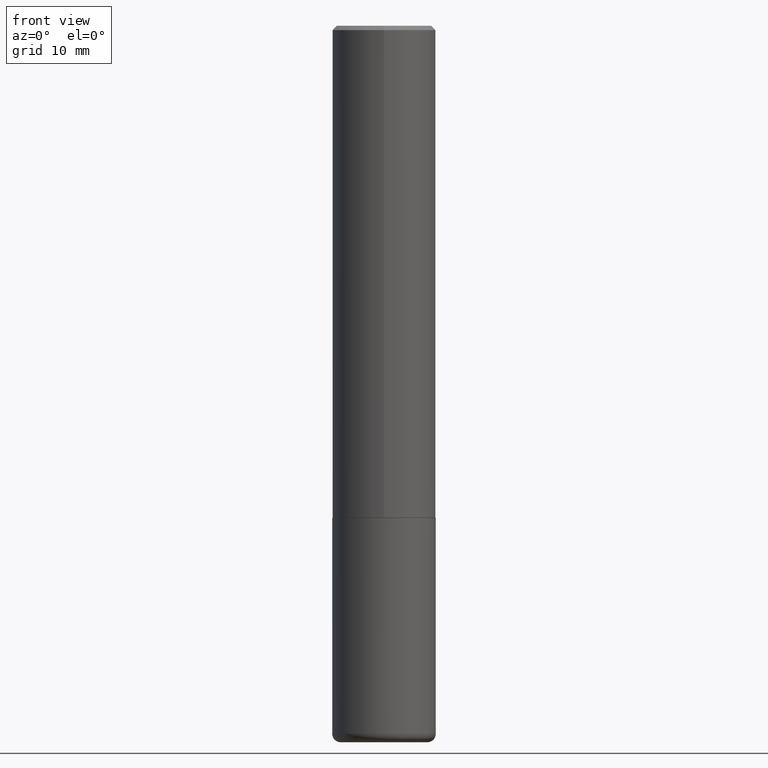
[diagram: clean part render]
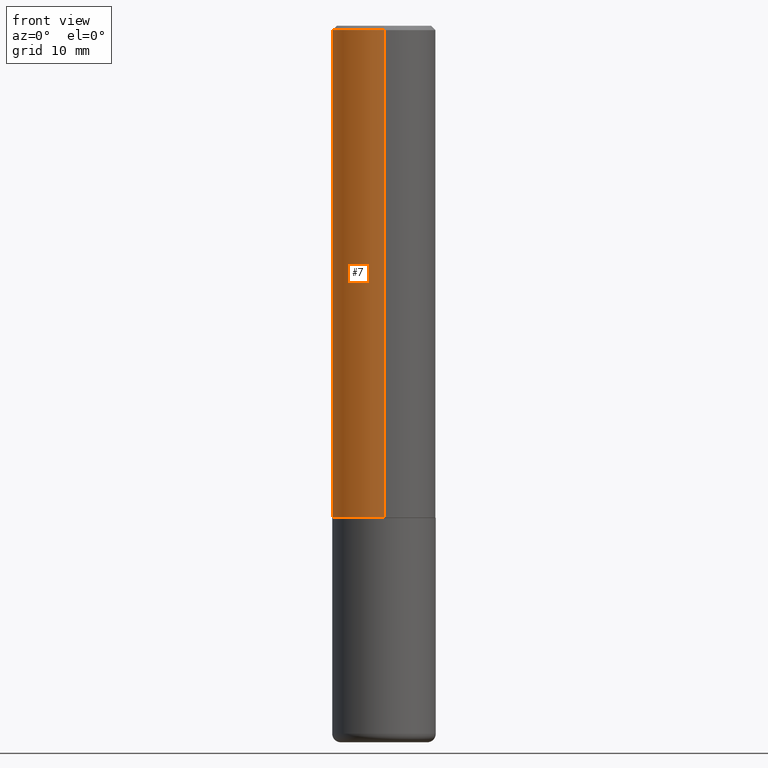
[diagram: same view with one face highlighted and labeled with its STEP entity id]
A machine part, front view. The second image highlights one B-rep face of the part: STEP entity #7.
In plain terms, the highlighted cylindrical surface (partial cylindrical patch) has radius 5.9995 mm, axis along (-0, 0, 1).
Its self-contained STEP definition (entity closure, byte-faithful):
#1 = ORIENTED_EDGE ( 'NONE', *, *, #334, .T. ) ;
#7 = ADVANCED_FACE ( 'NONE', ( #254 ), #137, .T. ) ;
#17 = CARTESIAN_POINT ( 'NONE',  ( 1.678301941865357577E-15, 0.2362000000000001598, -8.247714392355702416E-16 ) ) ;
#25 = EDGE_CURVE ( 'NONE', #384, #171, #392, .T. ) ;
#27 = AXIS2_PLACEMENT_3D ( 'NONE', #415, #259, #99 ) ;
#29 = DIRECTION ( 'NONE',  ( -2.445221809746292518E-29, 3.491835051801734308E-15, 1.000000000000000000 ) ) ;
#48 = DIRECTION ( 'NONE',  ( -2.445221809746292518E-29, 3.491835051801734308E-15, 1.000000000000000000 ) ) ;
#64 = ORIENTED_EDGE ( 'NONE', *, *, #25, .F. ) ;
#67 = DIRECTION ( 'NONE',  ( -6.982962677686265922E-15, -1.000000000000000000, 3.491835051801734308E-15 ) ) ;
#73 = DIRECTION ( 'NONE',  ( -2.445221809746292518E-29, 3.491835051801734702E-15, 1.000000000000000000 ) ) ;
#76 = EDGE_CURVE ( 'NONE', #187, #171, #178, .T. ) ;
#78 = VECTOR ( 'NONE', #277, 39.37007874015748143 ) ;
#92 = AXIS2_PLACEMENT_3D ( 'NONE', #356, #29, #67 ) ;
#99 = DIRECTION ( 'NONE',  ( -6.982962677686265922E-15, -1.000000000000000000, 3.487819265831410167E-15 ) ) ;
#113 = CARTESIAN_POINT ( 'NONE',  ( -1.620449627073635473E-15, -0.2362000000000001321, -0.01999999999999922673 ) ) ;
#115 = CARTESIAN_POINT ( 'NONE',  ( -1.649375784469443080E-15, -0.2362000000000080979, -2.243099999999999206 ) ) ;
#117 = CARTESIAN_POINT ( 'NONE',  ( 1.649375784469496920E-15, 0.2361999999999999933, -0.02000000000000087472 ) ) ;
#137 = CYLINDRICAL_SURFACE ( 'NONE', #92, 0.2362000000000001598 ) ;
#171 = VERTEX_POINT ( 'NONE', #113 ) ;
#178 = LINE ( 'NONE', #332, #393 ) ;
#184 = DIRECTION ( 'NONE',  ( -6.982962677686265922E-15, -1.000000000000000000, 3.469747663417773058E-15 ) ) ;
#185 = EDGE_LOOP ( 'NONE', ( #256, #1, #193, #64 ) ) ;
#186 = LINE ( 'NONE', #17, #78 ) ;
#187 = VERTEX_POINT ( 'NONE', #115 ) ;
#193 = ORIENTED_EDGE ( 'NONE', *, *, #76, .T. ) ;
#221 = AXIS2_PLACEMENT_3D ( 'NONE', #346, #48, #184 ) ;
#247 = CARTESIAN_POINT ( 'NONE',  ( 1.678301941865385779E-15, 0.2361999999999924715, -2.243100000000000982 ) ) ;
#254 = FACE_OUTER_BOUND ( 'NONE', #185, .T. ) ;
#256 = ORIENTED_EDGE ( 'NONE', *, *, #337, .F. ) ;
#259 = DIRECTION ( 'NONE',  ( -2.445221809746292518E-29, 3.491835051801734308E-15, 1.000000000000000000 ) ) ;
#277 = DIRECTION ( 'NONE',  ( -2.445221809746292518E-29, 3.491835051801734702E-15, 1.000000000000000000 ) ) ;
#298 = CIRCLE ( 'NONE', #221, 0.2362000000000002709 ) ;
#332 = CARTESIAN_POINT ( 'NONE',  ( -1.649375784469497117E-15, -0.2362000000000001598, 8.247714392355702416E-16 ) ) ;
#334 = EDGE_CURVE ( 'NONE', #349, #187, #298, .T. ) ;
#337 = EDGE_CURVE ( 'NONE', #349, #384, #186, .T. ) ;
#346 = CARTESIAN_POINT ( 'NONE',  ( 5.484877041441908919E-29, -7.832535204696471708E-15, -2.243100000000000094 ) ) ;
#349 = VERTEX_POINT ( 'NONE', #247 ) ;
#356 = CARTESIAN_POINT ( 'NONE',  ( 0.000000000000000000, 0.000000000000000000, 0.000000000000000000 ) ) ;
#384 = VERTEX_POINT ( 'NONE', #117 ) ;
#392 = CIRCLE ( 'NONE', #27, 0.2362000000000000766 ) ;
#393 = VECTOR ( 'NONE', #73, 39.37007874015748143 ) ;
#415 = CARTESIAN_POINT ( 'NONE',  ( 4.890443619492597157E-31, -6.983670103603485970E-17, -0.02000000000000005246 ) ) ;